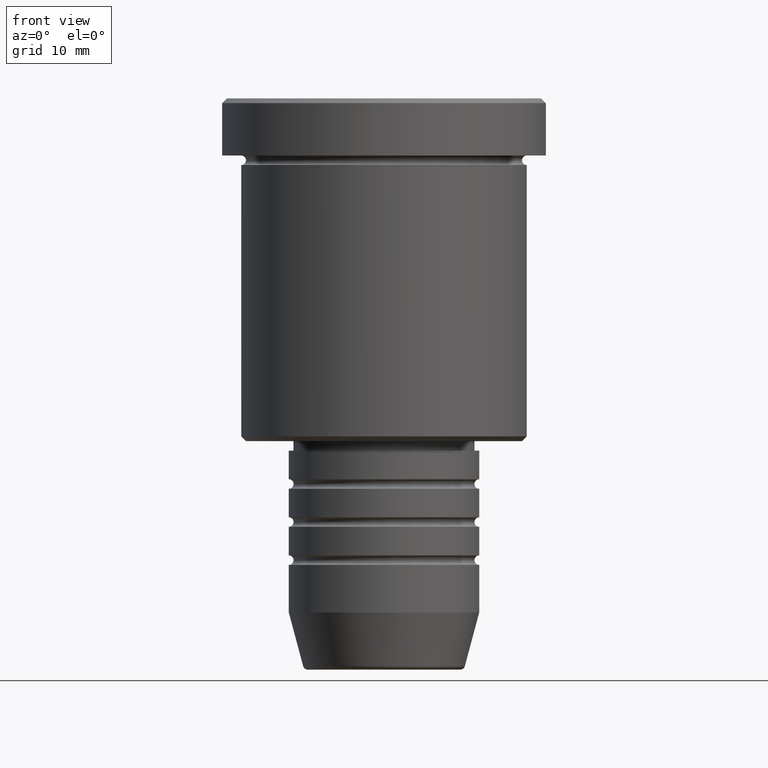
[diagram: clean part render]
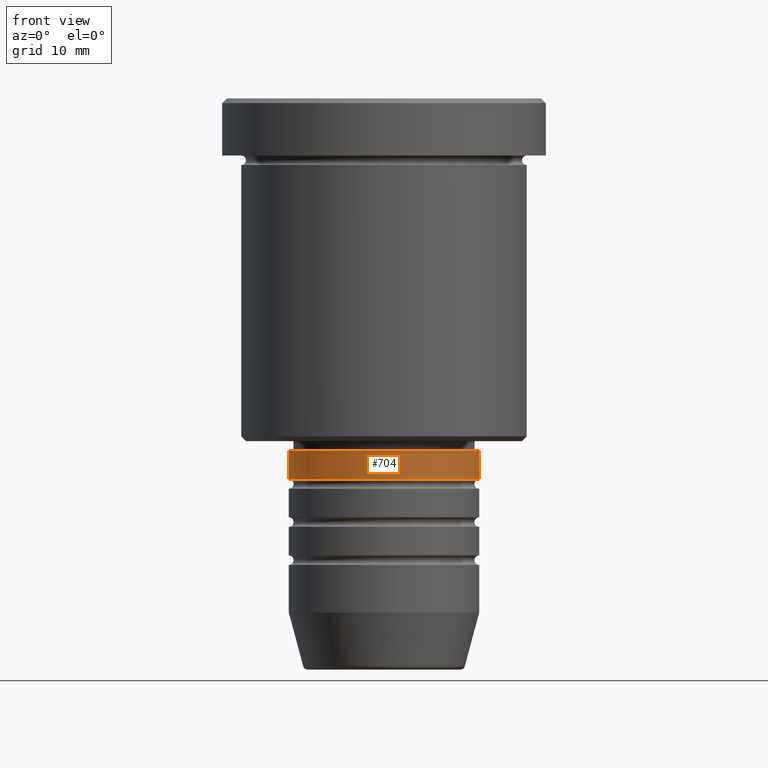
[diagram: same view with one face highlighted and labeled with its STEP entity id]
A machine part, front view. The second image highlights one B-rep face of the part: STEP entity #704.
In plain terms, the highlighted cylindrical surface (partial cylindrical patch) has radius 10 mm, axis along (-0, -0, 1).
Its self-contained STEP definition (entity closure, byte-faithful):
#9 = LINE ( 'NONE', #345, #696 ) ;
#16 = CARTESIAN_POINT ( 'NONE',  ( 10.00000000000000178, 0.000000000000000000, -39.99999999999999289 ) ) ;
#47 = VECTOR ( 'NONE', #617, 1000.000000000000000 ) ;
#67 = ORIENTED_EDGE ( 'NONE', *, *, #525, .T. ) ;
#68 = DIRECTION ( 'NONE',  ( -0.000000000000000000, -0.000000000000000000, 1.000000000000000000 ) ) ;
#76 = ORIENTED_EDGE ( 'NONE', *, *, #697, .F. ) ;
#86 = DIRECTION ( 'NONE',  ( 1.000000000000000000, 0.000000000000000000, 0.000000000000000000 ) ) ;
#206 = EDGE_CURVE ( 'NONE', #475, #858, #956, .T. ) ;
#232 = DIRECTION ( 'NONE',  ( 1.000000000000000000, 0.000000000000000000, 0.000000000000000000 ) ) ;
#244 = DIRECTION ( 'NONE',  ( -0.000000000000000000, -0.000000000000000000, 1.000000000000000000 ) ) ;
#267 = VERTEX_POINT ( 'NONE', #441 ) ;
#289 = CARTESIAN_POINT ( 'NONE',  ( 9.999999999999998224, 0.000000000000000000, -37.00000000000001421 ) ) ;
#290 = ORIENTED_EDGE ( 'NONE', *, *, #1094, .T. ) ;
#296 = CIRCLE ( 'NONE', #637, 10.00000000000000178 ) ;
#320 = DIRECTION ( 'NONE',  ( -0.000000000000000000, -0.000000000000000000, 1.000000000000000000 ) ) ;
#345 = CARTESIAN_POINT ( 'NONE',  ( -10.00000000000000000, 1.224646799147353256E-15, 0.000000000000000000 ) ) ;
#357 = LINE ( 'NONE', #549, #47 ) ;
#404 = AXIS2_PLACEMENT_3D ( 'NONE', #795, #320, #232 ) ;
#441 = CARTESIAN_POINT ( 'NONE',  ( -10.00000000000000178, 1.224646799147353454E-15, -39.99999999999999289 ) ) ;
#475 = VERTEX_POINT ( 'NONE', #691 ) ;
#514 = AXIS2_PLACEMENT_3D ( 'NONE', #1084, #68, #86 ) ;
#525 = EDGE_CURVE ( 'NONE', #267, #909, #296, .T. ) ;
#549 = CARTESIAN_POINT ( 'NONE',  ( 10.00000000000000000, 0.000000000000000000, 0.000000000000000000 ) ) ;
#617 = DIRECTION ( 'NONE',  ( -0.000000000000000000, -0.000000000000000000, 1.000000000000000000 ) ) ;
#629 = CYLINDRICAL_SURFACE ( 'NONE', #514, 10.00000000000000000 ) ;
#637 = AXIS2_PLACEMENT_3D ( 'NONE', #1060, #244, #982 ) ;
#691 = CARTESIAN_POINT ( 'NONE',  ( -9.999999999999998224, 1.224646799147353256E-15, -37.00000000000001421 ) ) ;
#696 = VECTOR ( 'NONE', #1018, 1000.000000000000000 ) ;
#697 = EDGE_CURVE ( 'NONE', #267, #475, #9, .T. ) ;
#704 = ADVANCED_FACE ( 'NONE', ( #916 ), #629, .T. ) ;
#795 = CARTESIAN_POINT ( 'NONE',  ( 0.000000000000000000, 0.000000000000000000, -37.00000000000001421 ) ) ;
#858 = VERTEX_POINT ( 'NONE', #289 ) ;
#909 = VERTEX_POINT ( 'NONE', #16 ) ;
#916 = FACE_OUTER_BOUND ( 'NONE', #1136, .T. ) ;
#956 = CIRCLE ( 'NONE', #404, 9.999999999999998224 ) ;
#982 = DIRECTION ( 'NONE',  ( 1.000000000000000000, 0.000000000000000000, 0.000000000000000000 ) ) ;
#1018 = DIRECTION ( 'NONE',  ( -0.000000000000000000, -0.000000000000000000, 1.000000000000000000 ) ) ;
#1060 = CARTESIAN_POINT ( 'NONE',  ( 0.000000000000000000, 0.000000000000000000, -39.99999999999999289 ) ) ;
#1083 = ORIENTED_EDGE ( 'NONE', *, *, #206, .F. ) ;
#1084 = CARTESIAN_POINT ( 'NONE',  ( 0.000000000000000000, 0.000000000000000000, 0.000000000000000000 ) ) ;
#1094 = EDGE_CURVE ( 'NONE', #909, #858, #357, .T. ) ;
#1136 = EDGE_LOOP ( 'NONE', ( #76, #67, #290, #1083 ) ) ;